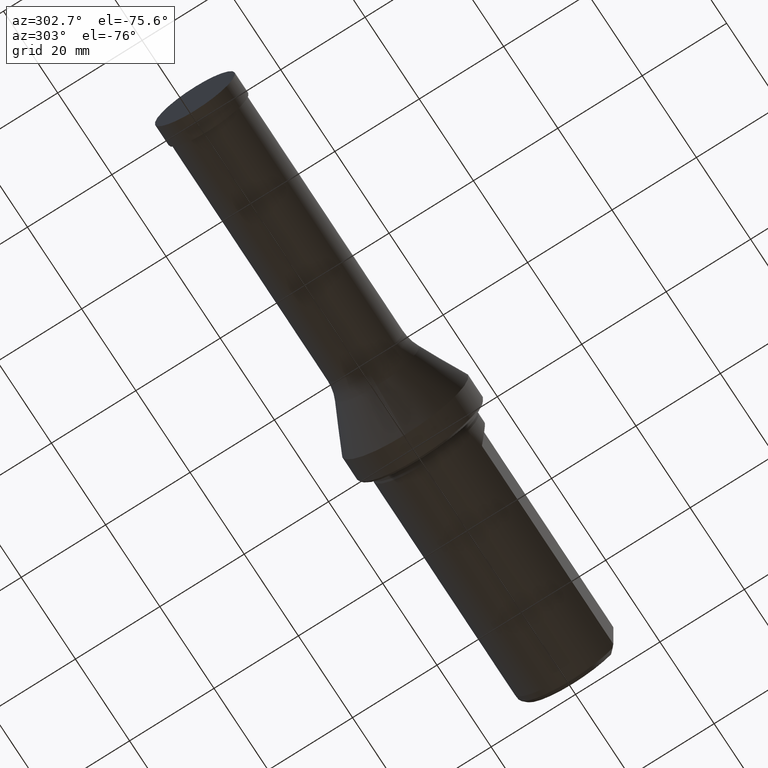
[diagram: clean part render]
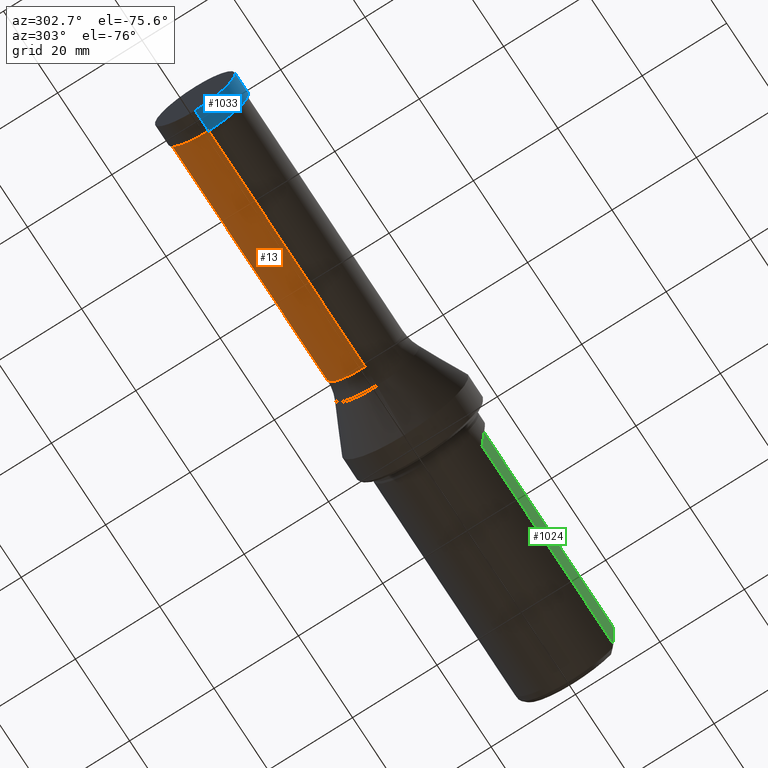
[diagram: same view with three faces highlighted in distinct colors, each labeled with its STEP entity id]
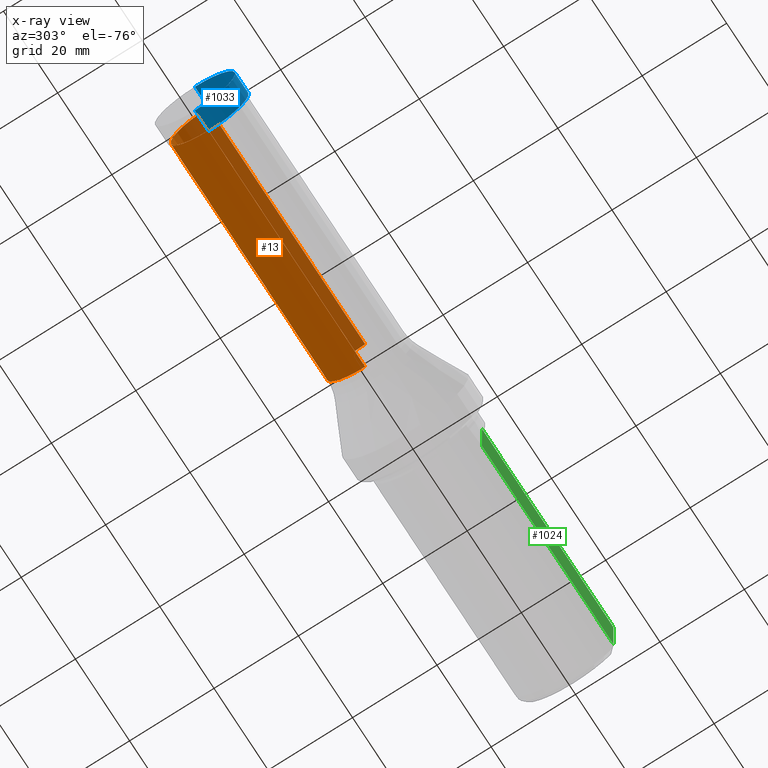
[diagram: x-ray of the same camera — body ghosted, the three highlighted faces saturated]
A machine part, auxiliary view with three faces highlighted in distinct colors.
The next image is the same camera in x-ray (body ghosted, the three faces saturated) — at least one of them is partly hidden behind the body in this view.
Their STEP definitions:

[orange] entity #13 — the highlighted cylindrical surface (partial cylindrical patch) has radius 9 mm, axis along (-1, -0, -0).
#13 = ADVANCED_FACE ( 'NONE', ( #948 ), #419, .T. ) ;
#40 = CARTESIAN_POINT ( 'NONE',  ( 0.0000000000000000000, 0.0000000000000000000, 9.000000000000000000 ) ) ;
#62 = DIRECTION ( 'NONE',  ( -1.000000000000000000, 0.0000000000000000000, 0.0000000000000000000 ) ) ;
#82 = DIRECTION ( 'NONE',  ( -1.000000000000000000, -0.0000000000000000000, -0.0000000000000000000 ) ) ;
#93 = DIRECTION ( 'NONE',  ( 0.0000000000000000000, 0.0000000000000000000, 1.000000000000000000 ) ) ;
#107 = AXIS2_PLACEMENT_3D ( 'NONE', #202, #62, #93 ) ;
#150 = AXIS2_PLACEMENT_3D ( 'NONE', #379, #82, #854 ) ;
#182 = CARTESIAN_POINT ( 'NONE',  ( 0.0000000000000000000, 1.102182119232617700E-015, -9.000000000000000000 ) ) ;
#186 = LINE ( 'NONE', #40, #339 ) ;
#202 = CARTESIAN_POINT ( 'NONE',  ( 4.500000000000000000, 0.0000000000000000000, 0.0000000000000000000 ) ) ;
#223 = ORIENTED_EDGE ( 'NONE', *, *, #552, .T. ) ;
#234 = DIRECTION ( 'NONE',  ( -1.000000000000000000, -0.0000000000000000000, -0.0000000000000000000 ) ) ;
#254 = ORIENTED_EDGE ( 'NONE', *, *, #295, .F. ) ;
#259 = LINE ( 'NONE', #182, #273 ) ;
#273 = VECTOR ( 'NONE', #1134, 1000.000000000000000 ) ;
#295 = EDGE_CURVE ( 'NONE', #1187, #1047, #186, .T. ) ;
#339 = VECTOR ( 'NONE', #234, 1000.000000000000000 ) ;
#356 = AXIS2_PLACEMENT_3D ( 'NONE', #850, #808, #1141 ) ;
#379 = CARTESIAN_POINT ( 'NONE',  ( 0.0000000000000000000, 0.0000000000000000000, 0.0000000000000000000 ) ) ;
#419 = CYLINDRICAL_SURFACE ( 'NONE', #150, 9.000000000000000000 ) ;
#450 = EDGE_LOOP ( 'NONE', ( #223, #857, #950, #254 ) ) ;
#474 = CARTESIAN_POINT ( 'NONE',  ( 62.32800000000001000, 0.0000000000000000000, 9.000000000000000000 ) ) ;
#477 = CARTESIAN_POINT ( 'NONE',  ( 4.500000000000000000, 0.0000000000000000000, 9.000000000000000000 ) ) ;
#491 = EDGE_CURVE ( 'NONE', #1047, #1066, #747, .T. ) ;
#552 = EDGE_CURVE ( 'NONE', #1187, #723, #631, .T. ) ;
#631 = CIRCLE ( 'NONE', #356, 9.000000000000000000 ) ;
#677 = CARTESIAN_POINT ( 'NONE',  ( 62.32800000000001000, 1.102182119232617700E-015, -9.000000000000000000 ) ) ;
#723 = VERTEX_POINT ( 'NONE', #677 ) ;
#747 = CIRCLE ( 'NONE', #107, 9.000000000000000000 ) ;
#808 = DIRECTION ( 'NONE',  ( -1.000000000000000000, -0.0000000000000000000, -0.0000000000000000000 ) ) ;
#850 = CARTESIAN_POINT ( 'NONE',  ( 62.32800000000001000, 0.0000000000000000000, 0.0000000000000000000 ) ) ;
#854 = DIRECTION ( 'NONE',  ( 0.0000000000000000000, 0.0000000000000000000, 1.000000000000000000 ) ) ;
#857 = ORIENTED_EDGE ( 'NONE', *, *, #1210, .T. ) ;
#876 = CARTESIAN_POINT ( 'NONE',  ( 4.500000000000000000, 1.102182119232617700E-015, -9.000000000000000000 ) ) ;
#948 = FACE_OUTER_BOUND ( 'NONE', #450, .T. ) ;
#950 = ORIENTED_EDGE ( 'NONE', *, *, #491, .F. ) ;
#1047 = VERTEX_POINT ( 'NONE', #477 ) ;
#1066 = VERTEX_POINT ( 'NONE', #876 ) ;
#1134 = DIRECTION ( 'NONE',  ( -1.000000000000000000, -0.0000000000000000000, -0.0000000000000000000 ) ) ;
#1141 = DIRECTION ( 'NONE',  ( 0.0000000000000000000, 0.0000000000000000000, 1.000000000000000000 ) ) ;
#1187 = VERTEX_POINT ( 'NONE', #474 ) ;
#1210 = EDGE_CURVE ( 'NONE', #723, #1066, #259, .T. ) ;

[blue] entity #1033 — the highlighted cylindrical surface (partial cylindrical patch) has radius 9.5 mm, axis along (-1, 0, 0).
#4 = AXIS2_PLACEMENT_3D ( 'NONE', #1112, #98, #532 ) ;
#95 = ORIENTED_EDGE ( 'NONE', *, *, #687, .F. ) ;
#98 = DIRECTION ( 'NONE',  ( -1.000000000000000000, 0.0000000000000000000, 0.0000000000000000000 ) ) ;
#105 = ORIENTED_EDGE ( 'NONE', *, *, #1087, .T. ) ;
#121 = CARTESIAN_POINT ( 'NONE',  ( -0.5000000000000002200, 1.163414459189985500E-015, -9.500000000000000000 ) ) ;
#133 = DIRECTION ( 'NONE',  ( -1.000000000000000000, 0.0000000000000000000, 0.0000000000000000000 ) ) ;
#158 = CIRCLE ( 'NONE', #765, 9.500000000000000000 ) ;
#160 = ORIENTED_EDGE ( 'NONE', *, *, #265, .F. ) ;
#181 = ORIENTED_EDGE ( 'NONE', *, *, #257, .T. ) ;
#257 = EDGE_CURVE ( 'NONE', #566, #1031, #837, .T. ) ;
#265 = EDGE_CURVE ( 'NONE', #1138, #1152, #158, .T. ) ;
#271 = EDGE_LOOP ( 'NONE', ( #95, #181, #105, #160 ) ) ;
#311 = CARTESIAN_POINT ( 'NONE',  ( 4.500000000000000000, 1.163414459189985500E-015, -9.500000000000000000 ) ) ;
#348 = DIRECTION ( 'NONE',  ( 0.0000000000000000000, 0.0000000000000000000, 1.000000000000000000 ) ) ;
#532 = DIRECTION ( 'NONE',  ( 0.0000000000000000000, 0.0000000000000000000, 1.000000000000000000 ) ) ;
#540 = VECTOR ( 'NONE', #1096, 1000.000000000000000 ) ;
#566 = VERTEX_POINT ( 'NONE', #311 ) ;
#672 = AXIS2_PLACEMENT_3D ( 'NONE', #1146, #133, #348 ) ;
#687 = EDGE_CURVE ( 'NONE', #566, #1138, #1001, .T. ) ;
#695 = VECTOR ( 'NONE', #872, 1000.000000000000000 ) ;
#733 = LINE ( 'NONE', #734, #695 ) ;
#734 = CARTESIAN_POINT ( 'NONE',  ( 4.500000000000000000, 0.0000000000000000000, 9.500000000000000000 ) ) ;
#765 = AXIS2_PLACEMENT_3D ( 'NONE', #1211, #888, #1058 ) ;
#837 = CIRCLE ( 'NONE', #672, 9.500000000000000000 ) ;
#848 = CYLINDRICAL_SURFACE ( 'NONE', #4, 9.500000000000000000 ) ;
#872 = DIRECTION ( 'NONE',  ( -1.000000000000000000, 0.0000000000000000000, 0.0000000000000000000 ) ) ;
#878 = FACE_OUTER_BOUND ( 'NONE', #271, .T. ) ;
#888 = DIRECTION ( 'NONE',  ( -1.000000000000000000, 0.0000000000000000000, 0.0000000000000000000 ) ) ;
#962 = CARTESIAN_POINT ( 'NONE',  ( 4.500000000000000000, 0.0000000000000000000, 9.500000000000000000 ) ) ;
#970 = CARTESIAN_POINT ( 'NONE',  ( 4.500000000000000000, 1.163414459189985500E-015, -9.500000000000000000 ) ) ;
#1001 = LINE ( 'NONE', #970, #540 ) ;
#1031 = VERTEX_POINT ( 'NONE', #962 ) ;
#1033 = ADVANCED_FACE ( 'NONE', ( #878 ), #848, .T. ) ;
#1052 = CARTESIAN_POINT ( 'NONE',  ( -0.5000000000000002200, 0.0000000000000000000, 9.500000000000000000 ) ) ;
#1058 = DIRECTION ( 'NONE',  ( 0.0000000000000000000, 0.0000000000000000000, 1.000000000000000000 ) ) ;
#1087 = EDGE_CURVE ( 'NONE', #1031, #1152, #733, .T. ) ;
#1096 = DIRECTION ( 'NONE',  ( -1.000000000000000000, 0.0000000000000000000, 0.0000000000000000000 ) ) ;
#1112 = CARTESIAN_POINT ( 'NONE',  ( 4.500000000000000000, 0.0000000000000000000, 0.0000000000000000000 ) ) ;
#1138 = VERTEX_POINT ( 'NONE', #121 ) ;
#1146 = CARTESIAN_POINT ( 'NONE',  ( 4.500000000000000000, 0.0000000000000000000, 0.0000000000000000000 ) ) ;
#1152 = VERTEX_POINT ( 'NONE', #1052 ) ;
#1211 = CARTESIAN_POINT ( 'NONE',  ( -0.5000000000000002200, 0.0000000000000000000, 0.0000000000000000000 ) ) ;

[green] entity #1024 — the highlighted planar face has unit normal (0, 1, 0).
#12 = DIRECTION ( 'NONE',  ( 1.430699774001490200E-016, 1.000000000000000000, 0.0000000000000000000 ) ) ;
#43 = CARTESIAN_POINT ( 'NONE',  ( 137.5999999999999900, -10.49999999999999800, -13.99999999999999800 ) ) ;
#72 = CARTESIAN_POINT ( 'NONE',  ( 137.5999999999999900, -10.49999999999999800, -6.671101858014195900 ) ) ;
#77 = CARTESIAN_POINT ( 'NONE',  ( 136.8499999999819500, -10.49999999999999800, -6.782329983127953100 ) ) ;
#109 = VERTEX_POINT ( 'NONE', #522 ) ;
#148 = AXIS2_PLACEMENT_3D ( 'NONE', #43, #12, #292 ) ;
#152 = CARTESIAN_POINT ( 'NONE',  ( 136.8500000000001600, -10.49999999999999800, 6.782329983125270800 ) ) ;
#178 = ORIENTED_EDGE ( 'NONE', *, *, #754, .F. ) ;
#188 = DIRECTION ( 'NONE',  ( -1.000000000000000000, -0.0000000000000000000, -0.0000000000000000000 ) ) ;
#192 = ORIENTED_EDGE ( 'NONE', *, *, #938, .T. ) ;
#198 = ORIENTED_EDGE ( 'NONE', *, *, #328, .F. ) ;
#199 = CARTESIAN_POINT ( 'NONE',  ( 137.3500450070720800, -10.49999999999999800, 6.708390332130807800 ) ) ;
#242 = CARTESIAN_POINT ( 'NONE',  ( 136.8499999999819500, -10.49999999999999800, -6.782329983127953100 ) ) ;
#292 = DIRECTION ( 'NONE',  ( -1.000000000000000000, 1.430699774001490200E-016, 0.0000000000000000000 ) ) ;
#328 = EDGE_CURVE ( 'NONE', #367, #835, #760, .T. ) ;
#330 = LINE ( 'NONE', #560, #886 ) ;
#333 = CARTESIAN_POINT ( 'NONE',  ( 137.3500337481315800, -10.49999999999999800, -6.708392011748030900 ) ) ;
#367 = VERTEX_POINT ( 'NONE', #1169 ) ;
#373 = B_SPLINE_CURVE_WITH_KNOTS ( 'NONE', 3,
 ( #152, #1201, #199, #1064 ),
 .UNSPECIFIED., .F., .F.,
 ( 4, 4 ),
 ( 0.02308276839015773300, 0.02384089024870078200 ),
 .UNSPECIFIED. ) ;
#440 = CARTESIAN_POINT ( 'NONE',  ( -0.5000000000000021100, -10.49999999999998000, 6.782329983125301900 ) ) ;
#516 = EDGE_CURVE ( 'NONE', #803, #551, #1148, .T. ) ;
#522 = CARTESIAN_POINT ( 'NONE',  ( 137.5999999999999900, -10.49999999999999800, 6.671101858014182500 ) ) ;
#551 = VERTEX_POINT ( 'NONE', #1090 ) ;
#560 = CARTESIAN_POINT ( 'NONE',  ( 89.09999999999999400, -10.49999999999999100, -13.99999999999999800 ) ) ;
#591 = CARTESIAN_POINT ( 'NONE',  ( 137.5999999999999900, -10.49999999999999800, -13.99999999999999800 ) ) ;
#599 = VERTEX_POINT ( 'NONE', #683 ) ;
#651 = LINE ( 'NONE', #591, #1160 ) ;
#683 = CARTESIAN_POINT ( 'NONE',  ( 89.09999999999999400, -10.49999999999999100, -6.782329983125303700 ) ) ;
#692 = ORIENTED_EDGE ( 'NONE', *, *, #718, .T. ) ;
#718 = EDGE_CURVE ( 'NONE', #367, #109, #651, .T. ) ;
#754 = EDGE_CURVE ( 'NONE', #599, #551, #330, .T. ) ;
#760 = B_SPLINE_CURVE_WITH_KNOTS ( 'NONE', 3,
 ( #72, #333, #992, #242 ),
 .UNSPECIFIED., .F., .F.,
 ( 4, 4 ),
 ( 0.02249755105075609100, 0.02325410724549115500 ),
 .UNSPECIFIED. ) ;
#770 = DIRECTION ( 'NONE',  ( -0.0000000000000000000, -0.0000000000000000000, 1.000000000000000000 ) ) ;
#803 = VERTEX_POINT ( 'NONE', #851 ) ;
#835 = VERTEX_POINT ( 'NONE', #77 ) ;
#851 = CARTESIAN_POINT ( 'NONE',  ( 136.8500000000001600, -10.49999999999999800, 6.782329983125270800 ) ) ;
#867 = PLANE ( 'NONE',  #148 ) ;
#886 = VECTOR ( 'NONE', #770, 1000.000000000000000 ) ;
#889 = ORIENTED_EDGE ( 'NONE', *, *, #516, .T. ) ;
#914 = VECTOR ( 'NONE', #188, 1000.000000000000000 ) ;
#938 = EDGE_CURVE ( 'NONE', #599, #835, #1174, .T. ) ;
#976 = FACE_OUTER_BOUND ( 'NONE', #1076, .T. ) ;
#979 = DIRECTION ( 'NONE',  ( 1.000000000000000000, 0.0000000000000000000, 0.0000000000000000000 ) ) ;
#992 = CARTESIAN_POINT ( 'NONE',  ( 137.1000323116046800, -10.49999999999999800, -6.745464730000382000 ) ) ;
#1024 = ADVANCED_FACE ( 'NONE', ( #976 ), #867, .F. ) ;
#1057 = ORIENTED_EDGE ( 'NONE', *, *, #1199, .F. ) ;
#1064 = CARTESIAN_POINT ( 'NONE',  ( 137.5999999999999900, -10.49999999999999800, 6.671101858014182500 ) ) ;
#1076 = EDGE_LOOP ( 'NONE', ( #192, #198, #692, #1057, #889, #178 ) ) ;
#1090 = CARTESIAN_POINT ( 'NONE',  ( 89.09999999999999400, -10.49999999999999100, 6.782329983125293000 ) ) ;
#1143 = VECTOR ( 'NONE', #979, 1000.000000000000000 ) ;
#1148 = LINE ( 'NONE', #440, #914 ) ;
#1151 = DIRECTION ( 'NONE',  ( -0.0000000000000000000, -0.0000000000000000000, 1.000000000000000000 ) ) ;
#1160 = VECTOR ( 'NONE', #1151, 1000.000000000000000 ) ;
#1169 = CARTESIAN_POINT ( 'NONE',  ( 137.5999999999999900, -10.49999999999999800, -6.671101858014195900 ) ) ;
#1174 = LINE ( 'NONE', #1231, #1143 ) ;
#1199 = EDGE_CURVE ( 'NONE', #803, #109, #373, .T. ) ;
#1201 = CARTESIAN_POINT ( 'NONE',  ( 137.1000416703259900, -10.49999999999999800, 6.745463350132194300 ) ) ;
#1231 = CARTESIAN_POINT ( 'NONE',  ( -0.5000000000000021100, -10.49999999999998000, -6.782329983125301900 ) ) ;